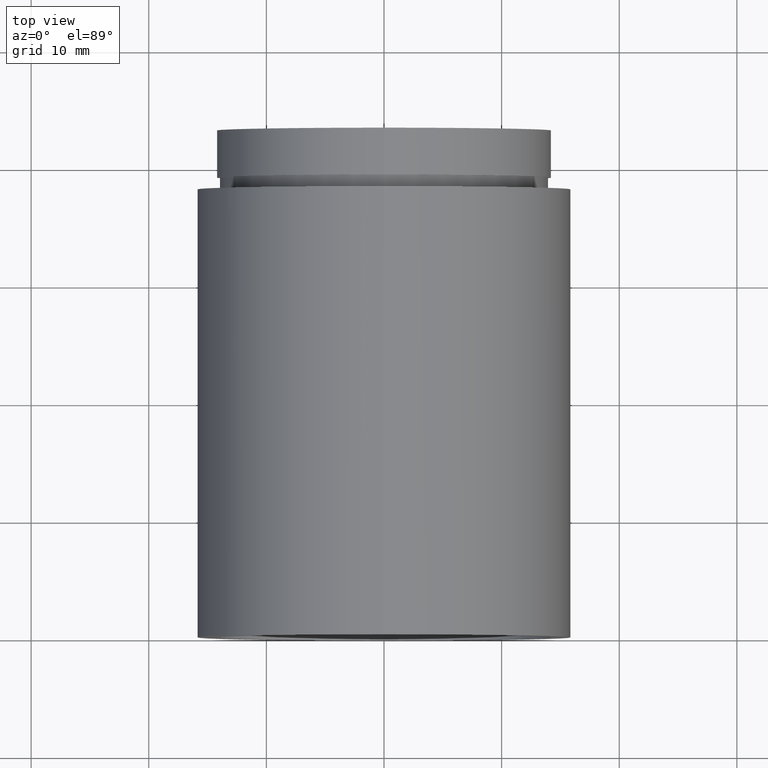
[diagram: clean part render]
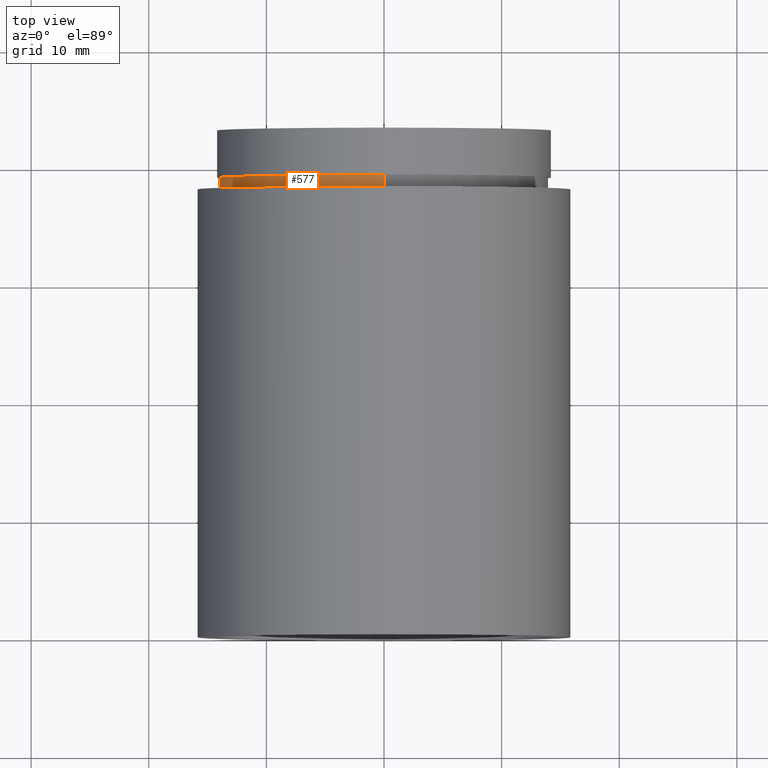
[diagram: same view with one face highlighted and labeled with its STEP entity id]
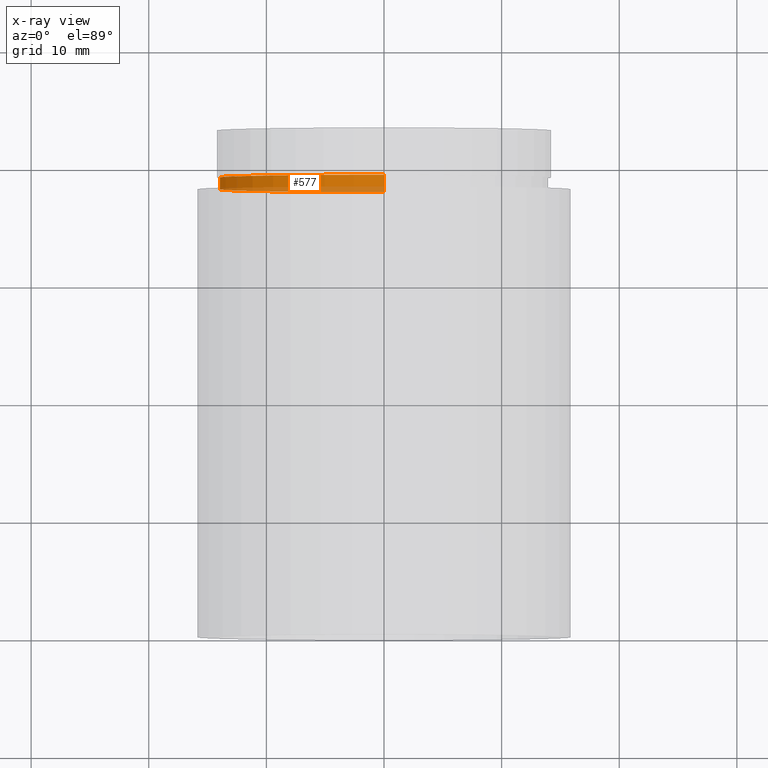
[diagram: x-ray of the same camera — body ghosted, the highlighted face saturated]
A machine part, top view. The second image highlights one B-rep face of the part: STEP entity #577.
The next image is the same camera in x-ray: the body ghosted, the highlighted face saturated — about 27% of this face is hidden behind the body in this view.
In plain terms, the highlighted cylindrical surface (partial cylindrical patch) has radius 14 mm, axis along (-0, 1, -0).
Its self-contained STEP definition (entity closure, byte-faithful):
#1 = CIRCLE ( 'NONE', #256, 14.00000000000001600 ) ;
#5 = CARTESIAN_POINT ( 'NONE',  ( 0.0000000000000000000, 38.09999999999999400, 14.00000000000001600 ) ) ;
#7 = EDGE_LOOP ( 'NONE', ( #272, #188, #232, #441 ) ) ;
#12 = VERTEX_POINT ( 'NONE', #5 ) ;
#21 = EDGE_CURVE ( 'NONE', #415, #279, #570, .T. ) ;
#30 = AXIS2_PLACEMENT_3D ( 'NONE', #436, #197, #61 ) ;
#48 = EDGE_CURVE ( 'NONE', #12, #485, #321, .T. ) ;
#51 = EDGE_CURVE ( 'NONE', #415, #12, #136, .T. ) ;
#52 = DIRECTION ( 'NONE',  ( -0.0000000000000000000, 1.000000000000000000, -0.0000000000000000000 ) ) ;
#61 = DIRECTION ( 'NONE',  ( 0.0000000000000000000, 0.0000000000000000000, 1.000000000000000000 ) ) ;
#81 = CARTESIAN_POINT ( 'NONE',  ( 1.714505518806296400E-015, 39.09999999999999400, -14.00000000000001600 ) ) ;
#88 = DIRECTION ( 'NONE',  ( 0.0000000000000000000, 0.0000000000000000000, 1.000000000000000000 ) ) ;
#136 = CIRCLE ( 'NONE', #30, 14.00000000000001600 ) ;
#153 = AXIS2_PLACEMENT_3D ( 'NONE', #562, #230, #88 ) ;
#170 = DIRECTION ( 'NONE',  ( 0.0000000000000000000, 0.0000000000000000000, 1.000000000000000000 ) ) ;
#188 = ORIENTED_EDGE ( 'NONE', *, *, #51, .T. ) ;
#197 = DIRECTION ( 'NONE',  ( -0.0000000000000000000, 1.000000000000000000, -0.0000000000000000000 ) ) ;
#221 = DIRECTION ( 'NONE',  ( -0.0000000000000000000, 1.000000000000000000, -0.0000000000000000000 ) ) ;
#230 = DIRECTION ( 'NONE',  ( -0.0000000000000000000, 1.000000000000000000, -0.0000000000000000000 ) ) ;
#232 = ORIENTED_EDGE ( 'NONE', *, *, #48, .T. ) ;
#248 = EDGE_CURVE ( 'NONE', #279, #485, #1, .T. ) ;
#256 = AXIS2_PLACEMENT_3D ( 'NONE', #267, #221, #170 ) ;
#267 = CARTESIAN_POINT ( 'NONE',  ( 0.0000000000000000000, 39.09999999999999400, 0.0000000000000000000 ) ) ;
#272 = ORIENTED_EDGE ( 'NONE', *, *, #21, .F. ) ;
#279 = VERTEX_POINT ( 'NONE', #81 ) ;
#321 = LINE ( 'NONE', #427, #548 ) ;
#330 = CARTESIAN_POINT ( 'NONE',  ( 1.714505518806296400E-015, 161.3761669434274500, -14.00000000000001600 ) ) ;
#354 = VECTOR ( 'NONE', #52, 1000.000000000000000 ) ;
#372 = CARTESIAN_POINT ( 'NONE',  ( 0.0000000000000000000, 39.09999999999999400, 14.00000000000001600 ) ) ;
#415 = VERTEX_POINT ( 'NONE', #464 ) ;
#427 = CARTESIAN_POINT ( 'NONE',  ( 0.0000000000000000000, 161.3761669434274500, 14.00000000000001600 ) ) ;
#432 = DIRECTION ( 'NONE',  ( -0.0000000000000000000, 1.000000000000000000, -0.0000000000000000000 ) ) ;
#436 = CARTESIAN_POINT ( 'NONE',  ( 0.0000000000000000000, 38.09999999999999400, 0.0000000000000000000 ) ) ;
#440 = FACE_OUTER_BOUND ( 'NONE', #7, .T. ) ;
#441 = ORIENTED_EDGE ( 'NONE', *, *, #248, .F. ) ;
#464 = CARTESIAN_POINT ( 'NONE',  ( 1.714505518806296400E-015, 38.09999999999999400, -14.00000000000001600 ) ) ;
#485 = VERTEX_POINT ( 'NONE', #372 ) ;
#547 = CYLINDRICAL_SURFACE ( 'NONE', #153, 14.00000000000001600 ) ;
#548 = VECTOR ( 'NONE', #432, 1000.000000000000000 ) ;
#562 = CARTESIAN_POINT ( 'NONE',  ( 0.0000000000000000000, 161.3761669434274500, 0.0000000000000000000 ) ) ;
#570 = LINE ( 'NONE', #330, #354 ) ;
#577 = ADVANCED_FACE ( 'NONE', ( #440 ), #547, .T. ) ;